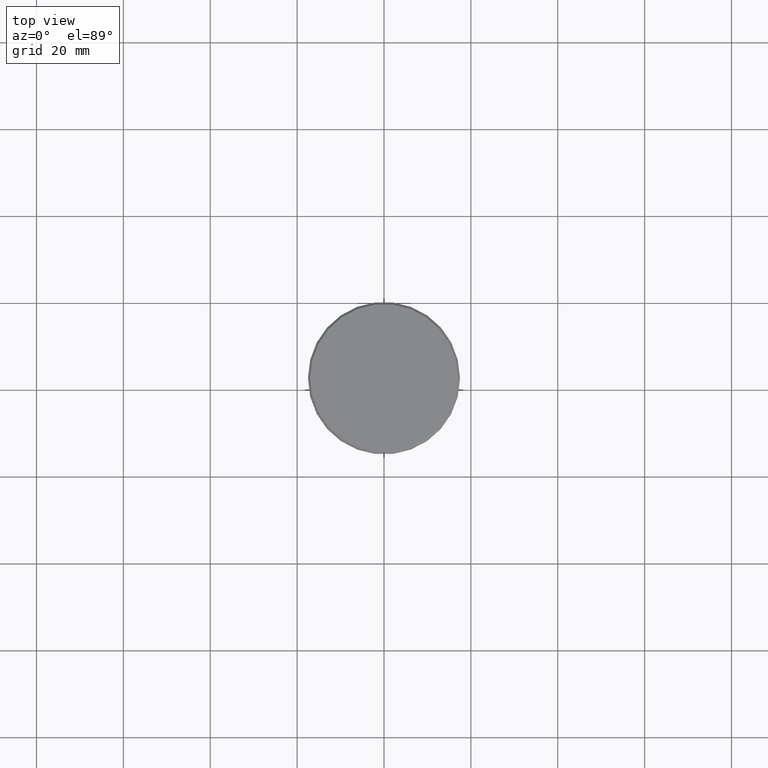
[diagram: clean part render]
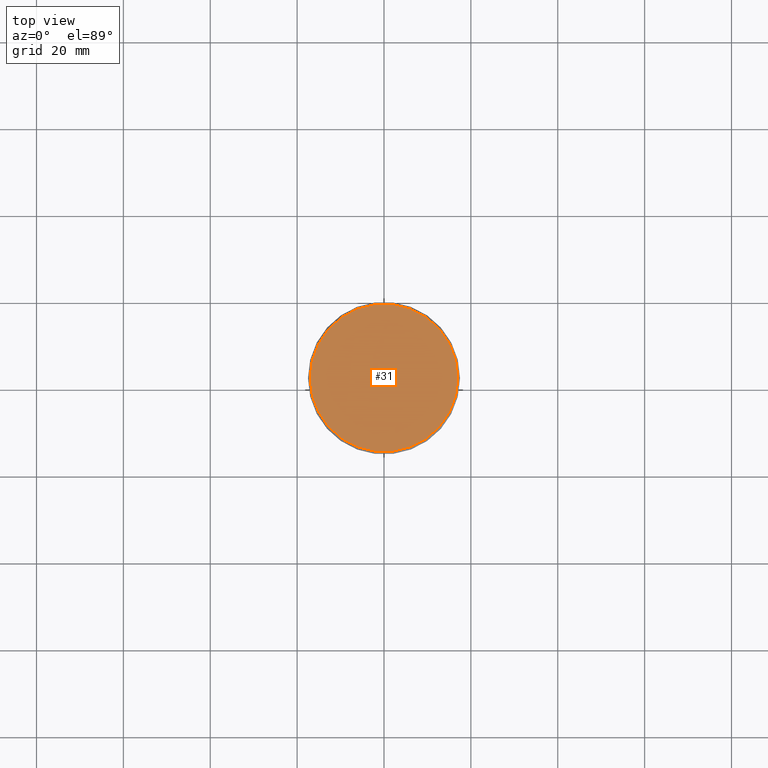
[diagram: same view with one face highlighted and labeled with its STEP entity id]
A machine part, top view. The second image highlights one B-rep face of the part: STEP entity #31.
In plain terms, the highlighted planar face has unit normal (0, -0, 1).
Its self-contained STEP definition (entity closure, byte-faithful):
#31 = ADVANCED_FACE ( 'NONE', ( #44 ), #314, .T. ) ;
#44 = FACE_OUTER_BOUND ( 'NONE', #627, .T. ) ;
#80 = CARTESIAN_POINT ( 'NONE',  ( 0.000000000000000000, 0.000000000000000000, 0.000000000000000000 ) ) ;
#92 = DIRECTION ( 'NONE',  ( -0.000000000000000000, -0.000000000000000000, 1.000000000000000000 ) ) ;
#138 = DIRECTION ( 'NONE',  ( 0.000000000000000000, -0.000000000000000000, 1.000000000000000000 ) ) ;
#255 = EDGE_CURVE ( 'NONE', #701, #333, #1021, .T. ) ;
#314 = PLANE ( 'NONE',  #651 ) ;
#322 = DIRECTION ( 'NONE',  ( 1.000000000000000000, 0.000000000000000000, 0.000000000000000000 ) ) ;
#333 = VERTEX_POINT ( 'NONE', #1111 ) ;
#398 = AXIS2_PLACEMENT_3D ( 'NONE', #80, #442, #813 ) ;
#442 = DIRECTION ( 'NONE',  ( -0.000000000000000000, -0.000000000000000000, 1.000000000000000000 ) ) ;
#544 = AXIS2_PLACEMENT_3D ( 'NONE', #705, #92, #724 ) ;
#627 = EDGE_LOOP ( 'NONE', ( #1132, #1156 ) ) ;
#651 = AXIS2_PLACEMENT_3D ( 'NONE', #1034, #138, #322 ) ;
#701 = VERTEX_POINT ( 'NONE', #909 ) ;
#705 = CARTESIAN_POINT ( 'NONE',  ( 0.000000000000000000, 0.000000000000000000, 0.000000000000000000 ) ) ;
#724 = DIRECTION ( 'NONE',  ( 1.000000000000000000, 0.000000000000000000, 0.000000000000000000 ) ) ;
#813 = DIRECTION ( 'NONE',  ( 1.000000000000000000, 0.000000000000000000, 0.000000000000000000 ) ) ;
#820 = CIRCLE ( 'NONE', #544, 17.00000000000000000 ) ;
#888 = EDGE_CURVE ( 'NONE', #333, #701, #820, .T. ) ;
#909 = CARTESIAN_POINT ( 'NONE',  ( -17.00000000000000000, 0.000000000000000000, 0.000000000000000000 ) ) ;
#1021 = CIRCLE ( 'NONE', #398, 17.00000000000000000 ) ;
#1034 = CARTESIAN_POINT ( 'NONE',  ( 0.000000000000000000, 0.000000000000000000, 0.000000000000000000 ) ) ;
#1111 = CARTESIAN_POINT ( 'NONE',  ( 17.00000000000000000, 2.112515728529184067E-15, 0.000000000000000000 ) ) ;
#1132 = ORIENTED_EDGE ( 'NONE', *, *, #255, .T. ) ;
#1156 = ORIENTED_EDGE ( 'NONE', *, *, #888, .T. ) ;